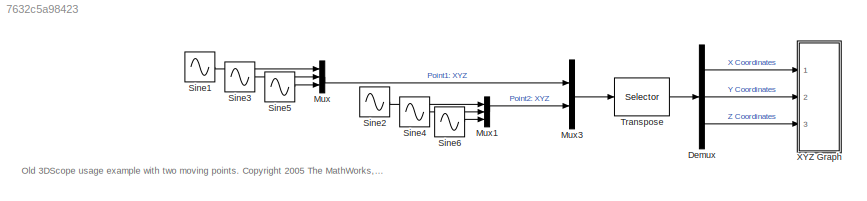
MODEL slx_7632c5a98423
KIND model
CONFIG AbsTol = auto
CONFIG EnableMultiTasking = on
CONFIG FixedStep = 1
CONFIG MaxStep = auto
CONFIG MinStep = auto
CONFIG RelTol = 1e-3
CONFIG SampleTimeConstraint = Unconstrained
CONFIG Solver = ode45
CONFIG SolverName = ode45
CONFIG StartTime = 0.0
CONFIG StopTime = 10
BLOCK [Demux] Demux
  Outputs = [2 2 2]
  Ports = [1, 3]
BLOCK [Mux] Mux
  DisplayOption = bar
  Inputs = 3
  Ports = [3, 1]
BLOCK [Mux] Mux1
  DisplayOption = bar
  Inputs = 3
  Ports = [3, 1]
BLOCK [Mux] Mux3
  DisplayOption = bar
  Inputs = 2
  Ports = [2, 1]
BLOCK [Sin] Sine1
  Ports = [0, 1]
  SampleTime = 0
BLOCK [Sin] Sine2
  Amplitude = 2
  Frequency = 2
  Ports = [0, 1]
  SampleTime = 0
BLOCK [Sin] Sine3
  Phase = pi/2
  Ports = [0, 1]
  SampleTime = 0
BLOCK [Sin] Sine4
  Amplitude = 2
  Frequency = 2
  Phase = pi/2
  Ports = [0, 1]
  SampleTime = 0
BLOCK [Sin] Sine5
  Amplitude = 1.5
  Frequency = 1.2
  Phase = pi/2
  Ports = [0, 1]
  SampleTime = 0
BLOCK [Sin] Sine6
  Amplitude = 2.5
  Frequency = 2.2
  Phase = pi/2
  Ports = [0, 1]
  SampleTime = 0
BLOCK [Selector] Transpose
  IndexOptions = Index vector (dialog)
  Indices = reshape(reshape(1:3*2,3,2)',3*2,1)
  InputPortWidth = 3*2
  OutputSizes = 1
  Ports = [1, 1]
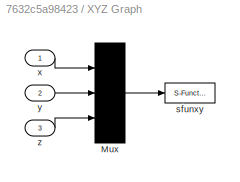
BLOCK [SubSystem] XYZ Graph
  CopyFcn = sfunxyz([],[],[],'CopyBlock')
  DeleteFcn = sfunxyz([],[],[],'DeleteBlock')
  LoadFcn = sfunxyz([],[],[],'LoadBlock')
  NameChangeFcn = sfunxyz([],[],[],'NameChange')
  Ports = [3]
  RequestExecContextInheritance = off
  StartFcn = sfunxyz([],[],[],'Start')
  StopFcn = sfunxyz([],[],[],'Stop')
BLOCK [Mux] XYZ Graph/Mux
  Inputs = [np np np]
  Ports = [3, 1]
BLOCK [S-Function] XYZ Graph/sfunxy
  EnableBusSupport = off
  FunctionName = sfunxyz
  Parameters = xyzlim,st,np,cp,gd
  Ports = [1]
  SFcnIsStateOwnerBlock = off
  SFunctionDeploymentMode = off
BLOCK [Inport] XYZ Graph/x
  IconDisplay = Port number
BLOCK [Inport] XYZ Graph/y
  IconDisplay = Port number
  Port = 2
BLOCK [Inport] XYZ Graph/z
  IconDisplay = Port number
  Port = 3
ANNOTATION (root): Old 3DScope usage example with two moving points. <copyright redacted>
LINE Demux:1 -> XYZ Graph:1
LINE Demux:2 -> XYZ Graph:2
LINE Demux:3 -> XYZ Graph:3
LINE Mux1:1 -> Mux3:2
LINE Mux3:1 -> Transpose:1
LINE Mux:1 -> Mux3:1
LINE Sine1:1 -> Mux:1
LINE Sine2:1 -> Mux1:1
LINE Sine3:1 -> Mux:2
LINE Sine4:1 -> Mux1:2
LINE Sine5:1 -> Mux:3
LINE Sine6:1 -> Mux1:3
LINE Transpose:1 -> Demux:1
